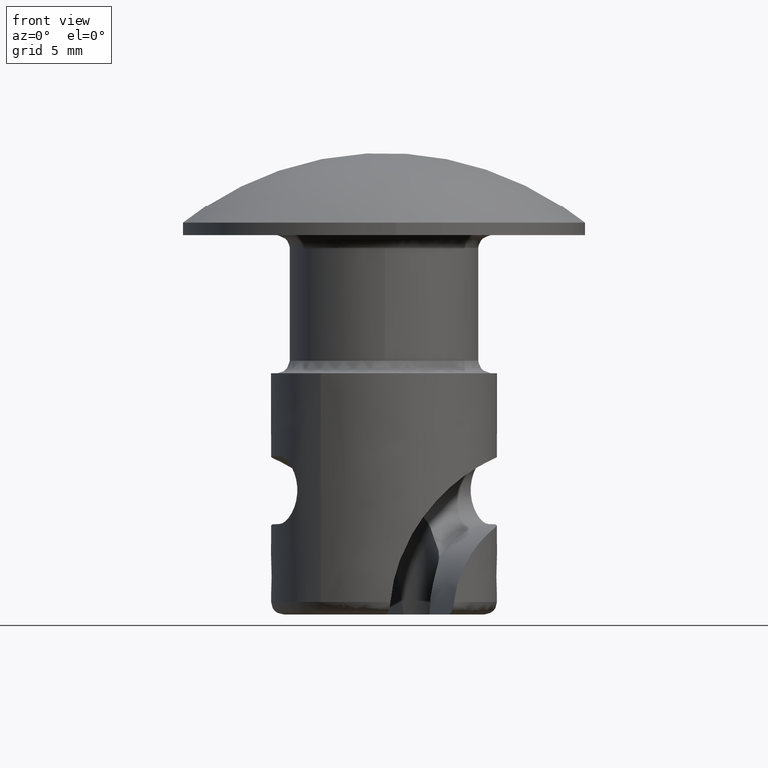
[diagram: clean part render]
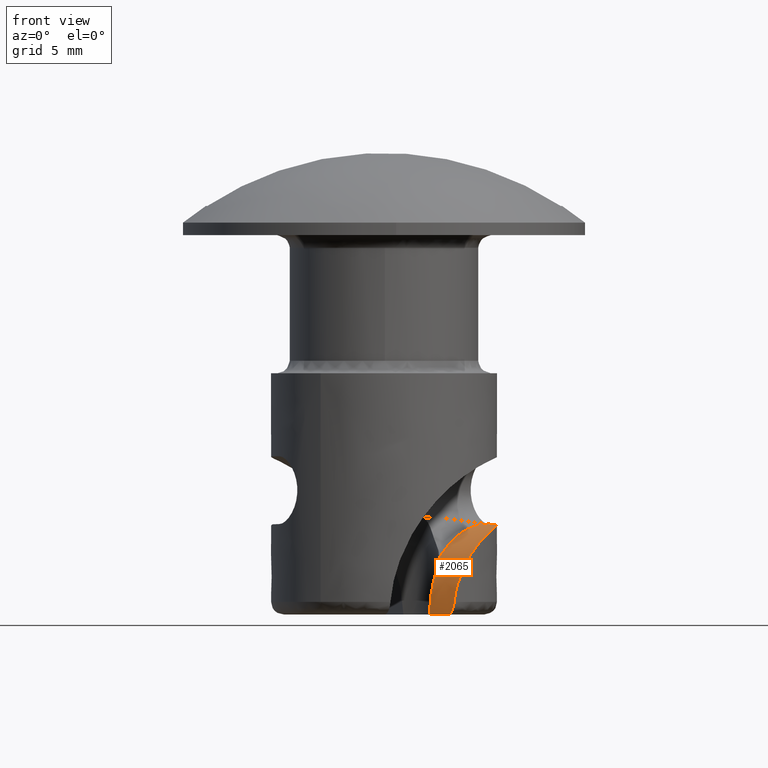
[diagram: same view with one face highlighted and labeled with its STEP entity id]
A machine part, front view. The second image highlights one B-rep face of the part: STEP entity #2065.
In plain terms, the highlighted face is a freeform B-spline surface patch.
Its self-contained STEP definition (entity closure, byte-faithful):
#1195=CARTESIAN_POINT('',(4.157457896922510,1.722075444144590,-11.500000000003380));
#1196=VERTEX_POINT('',#1195);
#1197=CARTESIAN_POINT('',(2.197773768741005,-0.098946760603666,-12.831281592313941));
#1198=VERTEX_POINT('',#1197);
#1199=CARTESIAN_POINT('',(4.157457896922510,1.722075444144590,-11.500000000003380));
#1200=CARTESIAN_POINT('',(4.125452912502550,1.725110562680482,-11.502544796561009));
#1201=CARTESIAN_POINT('',(4.060069893182022,1.731311009838559,-11.507743564369081));
#1202=CARTESIAN_POINT('',(3.959303208621335,1.718714171857049,-11.519622426035649));
#1203=CARTESIAN_POINT('',(3.855849823883416,1.690707122559201,-11.535481755646050));
#1204=CARTESIAN_POINT('',(3.749653738848938,1.645796076980051,-11.556413685271380));
#1205=CARTESIAN_POINT('',(3.640972721425762,1.584720481639556,-11.583234881270741));
#1206=CARTESIAN_POINT('',(3.530041760258121,1.507507301918255,-11.616935497790079));
#1207=CARTESIAN_POINT('',(3.417232390550025,1.414384622367061,-11.658531041559611));
#1208=CARTESIAN_POINT('',(3.303003998406402,1.305560192297589,-11.709101086553909));
#1209=CARTESIAN_POINT('',(3.188035612149698,1.181222990725968,-11.769727560544791));
#1210=CARTESIAN_POINT('',(3.072754431255818,1.041936610764211,-11.841640635108689));
#1211=CARTESIAN_POINT('',(2.920935907106505,0.834458565334028,-11.953960614145940));
#1212=CARTESIAN_POINT('',(2.756251197954633,0.593738081010123,-12.104075932946859));
#1213=CARTESIAN_POINT('',(2.595497183612809,0.359601233917740,-12.283255809704110));
#1214=CARTESIAN_POINT('',(2.468871599093746,0.177441331891214,-12.446003627809439));
#1215=CARTESIAN_POINT('',(2.337960813906498,0.028912850226862,-12.619713458560961));
#1216=CARTESIAN_POINT('',(2.246831830708101,-0.054202610587828,-12.757243902855860));
#1217=CARTESIAN_POINT('',(2.197773723639233,-0.098946741737061,-12.831281635140870));
#1218=B_SPLINE_CURVE_WITH_KNOTS('',3,(#1199,#1200,#1201,#1202,#1203,#1204,#1205,#1206,#1207,#1208,#1209,#1210,#1211,#1212,#1213,#1214,#1215,#1216,#1217),.UNSPECIFIED.,.F.,.U.,(4,1,1,1,1,1,1,1,1,1,1,1,1,1,1,1,4),(0.0,0.030664300407832,0.062644134453290,0.096766221245464,0.133713736690631,0.174026444705904,0.218120680429869,0.266314856127861,0.318852872931530,0.375922946849654,0.437671846497451,0.504215370096612,0.643272935090420,0.749860333036976,0.824062975144340,0.905286582821228,1.0),.UNSPECIFIED.);
#1219=EDGE_CURVE('',#1196,#1198,#1218,.T.);
#1681=CARTESIAN_POINT('',(1.034962855819279,0.639374186945773,-15.228944732872190));
#1682=CARTESIAN_POINT('',(1.084215468838564,0.520384449175651,-15.228916683534180));
#1683=CARTESIAN_POINT('',(1.182714269959426,0.282402312347358,-15.228854622624020));
#1684=CARTESIAN_POINT('',(1.305837907716758,-0.015075302207398,-15.228777357647910));
#1685=CARTESIAN_POINT('',(1.392034695119948,-0.223305390445800,-15.228732941957301));
#1686=CARTESIAN_POINT('',(1.441293601408013,-0.342292521458644,-15.228710950338000));
#1687=CARTESIAN_POINT('',(1.490555064575087,-0.461278593377527,-15.228691363700429));
#1688=CARTESIAN_POINT('',(1.552136349801280,-0.610009337429758,-15.228671082433589));
#1689=CARTESIAN_POINT('',(1.650676554557069,-0.847974324310950,-15.228648173115500));
#1690=CARTESIAN_POINT('',(1.773858039118651,-1.145427977934871,-15.228625815710791));
#1691=CARTESIAN_POINT('',(1.970986753472779,-1.621337943176361,-15.228626359355831));
#1692=CARTESIAN_POINT('',(2.315961909339441,-2.454180421389872,-15.228625887059390));
#1693=CARTESIAN_POINT('',(2.611658342200288,-3.168043976943784,-15.228631659531329));
#1694=CARTESIAN_POINT('',(2.808782994760819,-3.643955624635268,-15.228624780416281));
#1695=CARTESIAN_POINT('',(1.017533071731513,0.632154533994760,-14.746032036799059));
#1696=CARTESIAN_POINT('',(1.066786760657519,0.513165241879792,-14.746004976588130));
#1697=CARTESIAN_POINT('',(1.165285329765830,0.275183008948754,-14.745942648445860));
#1698=CARTESIAN_POINT('',(1.288404446581350,-0.022296478241414,-14.745861075336430));
#1699=CARTESIAN_POINT('',(1.374594005374844,-0.230529560667986,-14.745809787148310));
#1700=CARTESIAN_POINT('',(1.423846434690706,-0.349519374530557,-14.745781649071040));
#1701=CARTESIAN_POINT('',(1.473095294133328,-0.468510667083039,-14.745750655217829));
#1702=CARTESIAN_POINT('',(1.534675690080683,-0.617241779486625,-14.745729510468539));
#1703=CARTESIAN_POINT('',(1.633226392581456,-0.855202418059475,-14.745716328022359));
#1704=CARTESIAN_POINT('',(1.756365991729082,-1.152673421189907,-14.745653523803950));
#1705=CARTESIAN_POINT('',(1.953540274708747,-1.628564511288696,-14.745698469283591));
#1706=CARTESIAN_POINT('',(2.298478089768139,-2.461422456570995,-14.745661165267769));
#1707=CARTESIAN_POINT('',(2.594168285910470,-3.175288595458295,-14.745665852729640));
#1708=CARTESIAN_POINT('',(2.791313911753889,-3.651191555731570,-14.745669454813120));
#1709=CARTESIAN_POINT('',(1.090178833974785,0.662245393934123,-14.264295783530541));
#1710=CARTESIAN_POINT('',(1.139439572252817,0.543259021756369,-14.264275238050841));
#1711=CARTESIAN_POINT('',(1.237938566497721,0.305276964922673,-14.264213296728460));
#1712=CARTESIAN_POINT('',(1.361023589535300,0.007783355627303,-14.264100385788460));
#1713=CARTESIAN_POINT('',(1.447200056864402,-0.200455149461366,-14.264037566134331));
#1714=CARTESIAN_POINT('',(1.496453546294813,-0.319444524210113,-14.264010922091460));
#1715=CARTESIAN_POINT('',(1.545725951579542,-0.438426063755467,-14.264000803796311));
#1716=CARTESIAN_POINT('',(1.607280135092165,-0.587168033705010,-14.263955505781720));
#1717=CARTESIAN_POINT('',(1.705767702396476,-0.825154823732472,-14.263883637401401));
#1718=CARTESIAN_POINT('',(1.828930635141916,-1.122616161770235,-14.263847537947401));
#1719=CARTESIAN_POINT('',(2.026021380692177,-1.598541854205223,-14.263808067631381));
#1720=CARTESIAN_POINT('',(2.371056766666423,-2.431359384291331,-14.263867015413490));
#1721=CARTESIAN_POINT('',(2.666726233395976,-3.145234109582539,-14.263839169144649));
#1722=CARTESIAN_POINT('',(2.863826696813442,-3.621155776745133,-14.263828668697110));
#1723=CARTESIAN_POINT('',(1.327624994764378,0.760598813966150,-13.586414353598620));
#1724=CARTESIAN_POINT('',(1.376916731847912,0.641625281914039,-13.586422467773430));
#1725=CARTESIAN_POINT('',(1.475501790942413,0.403678874308253,-13.586439701131740));
#1726=CARTESIAN_POINT('',(1.598633691787954,0.106204682436696,-13.586368761969860));
#1727=CARTESIAN_POINT('',(1.684755312291634,-0.102056540950893,-13.586253929580071));
#1728=CARTESIAN_POINT('',(1.733954421748801,-0.221068440622057,-13.586176021346271));
#1729=CARTESIAN_POINT('',(1.783116289346166,-0.340095766376623,-13.586066062064820));
#1730=CARTESIAN_POINT('',(1.844667923283617,-0.488838792394780,-13.586018986933439));
#1731=CARTESIAN_POINT('',(1.943159536309370,-0.726823906629552,-13.585951455740579));
#1732=CARTESIAN_POINT('',(2.066234330363976,-1.024321752908394,-13.585829217605539));
#1733=CARTESIAN_POINT('',(2.263451689576771,-1.500195000247228,-13.585912415845030));
#1734=CARTESIAN_POINT('',(2.608427008525650,-2.333037410909872,-13.585913008052451));
#1735=CARTESIAN_POINT('',(2.904100103743861,-3.046910633231866,-13.585895782185339));
#1736=CARTESIAN_POINT('',(3.101221658531417,-3.522823564062931,-13.585885375864860));
#1737=CARTESIAN_POINT('',(1.452297086928057,0.812239685337035,-13.316157497510700));
#1738=CARTESIAN_POINT('',(1.501602530506125,0.693271830700846,-13.316178157944959));
#1739=CARTESIAN_POINT('',(1.600253770803644,0.455352836246897,-13.316257606637100));
#1740=CARTESIAN_POINT('',(1.723478241036672,0.157916987871058,-13.316267479678640));
#1741=CARTESIAN_POINT('',(1.809482378565552,-0.050392898557991,-13.316045613343460));
#1742=CARTESIAN_POINT('',(1.858666442906383,-0.169411030120382,-13.315958663183221));
#1743=CARTESIAN_POINT('',(1.908018848725651,-0.288359432359367,-13.316018719335471));
#1744=CARTESIAN_POINT('',(1.969330952772527,-0.437201674906691,-13.315751222139561));
#1745=CARTESIAN_POINT('',(2.067726290556551,-0.675226667652269,-13.315596792494860));
#1746=CARTESIAN_POINT('',(2.190913165686793,-0.972678088429542,-13.315579000123920));
#1747=CARTESIAN_POINT('',(2.388137721756232,-1.448548354732753,-13.315667873682450));
#1748=CARTESIAN_POINT('',(2.733109268065450,-2.281392328073908,-13.315666519001031));
#1749=CARTESIAN_POINT('',(3.028776625883912,-2.995267926904687,-13.315641458469029));
#1750=CARTESIAN_POINT('',(3.225886186941826,-3.471185825701227,-13.315626233346810));
#1751=CARTESIAN_POINT('',(1.637101442129758,0.888788155569018,-13.015870026501950));
#1752=CARTESIAN_POINT('',(1.686416660982527,0.769824349984182,-13.015900003792909));
#1753=CARTESIAN_POINT('',(1.785004949473800,0.531879280038336,-13.015920319477839));
#1754=CARTESIAN_POINT('',(1.908575422233549,0.234586750601535,-13.016255196093940));
#1755=CARTESIAN_POINT('',(1.994630055288626,0.026297780104255,-13.016059244110220));
#1756=CARTESIAN_POINT('',(2.043473739084904,-0.092861341695915,-13.015645953206180));
#1757=CARTESIAN_POINT('',(2.092100653132428,-0.212110252465837,-13.015057516382260));
#1758=CARTESIAN_POINT('',(2.154119809570743,-0.360659624323623,-13.015452625856909));
#1759=CARTESIAN_POINT('',(2.252674658075601,-0.598618545565351,-13.015442698588430));
#1760=CARTESIAN_POINT('',(2.375850108455331,-0.896074698629230,-13.015413102692410));
#1761=CARTESIAN_POINT('',(2.573065343124651,-1.371948825982786,-13.015494152399830));
#1762=CARTESIAN_POINT('',(2.918009961929646,-2.204803953061379,-13.015467787672920));
#1763=CARTESIAN_POINT('',(3.213673927652127,-2.918680956944319,-13.015441073890530));
#1764=CARTESIAN_POINT('',(3.410785463493042,-3.394598037758958,-13.015425902428911));
#1765=CARTESIAN_POINT('',(1.719833207571193,0.923056774818933,-12.894997607679180));
#1766=CARTESIAN_POINT('',(1.769133212558097,0.804086667444525,-12.895014079050810));
#1767=CARTESIAN_POINT('',(1.867778013717937,0.566165005812422,-12.895083399531369));
#1768=CARTESIAN_POINT('',(1.991161243475300,0.268794917784652,-12.895255838684911));
#1769=CARTESIAN_POINT('',(2.077987839619897,0.060825704868377,-12.895752825296359));
#1770=CARTESIAN_POINT('',(2.125307907150196,-0.058964519452370,-12.893948663745491));
#1771=CARTESIAN_POINT('',(2.174782851045042,-0.177862164758599,-12.894158420947541));
#1772=CARTESIAN_POINT('',(2.237342539144839,-0.326187641071527,-12.895033347002659));
#1773=CARTESIAN_POINT('',(2.335277346718671,-0.564403391675853,-12.894451759857240));
#1774=CARTESIAN_POINT('',(2.458729441185247,-0.861744955007126,-12.894676655794090));
#1775=CARTESIAN_POINT('',(2.655835206171689,-1.337664426187952,-12.894656781651420));
#1776=CARTESIAN_POINT('',(3.000802656735272,-2.170510096042496,-12.894651881891710));
#1777=CARTESIAN_POINT('',(3.296455222772909,-2.884391821829499,-12.894614410785550));
#1778=CARTESIAN_POINT('',(3.493567646661021,-3.360308534802946,-12.894600563803991));
#1779=CARTESIAN_POINT('',(1.780681933855991,0.948261142473483,-12.812744704388740));
#1780=CARTESIAN_POINT('',(1.829972199258204,0.829287000831010,-12.812752143811380));
#1781=CARTESIAN_POINT('',(1.928639377764698,0.591374608199371,-12.812842270923040));
#1782=CARTESIAN_POINT('',(2.051904276974990,0.293955506054211,-12.812905611467180));
#1783=CARTESIAN_POINT('',(2.139028192398680,0.086109446815565,-12.813684178060191));
#1784=CARTESIAN_POINT('',(2.186755800637584,-0.033511968616629,-12.812245168865770));
#1785=CARTESIAN_POINT('',(2.237031167172167,-0.152078068010183,-12.813195253699300));
#1786=CARTESIAN_POINT('',(2.297672794317620,-0.301198031183054,-12.812311450537530));
#1787=CARTESIAN_POINT('',(2.396368285320455,-0.539098696394735,-12.812419604941320));
#1788=CARTESIAN_POINT('',(2.519581451383056,-0.836539227111270,-12.812427568259089));
#1789=CARTESIAN_POINT('',(2.716745314549925,-1.312434633237839,-12.812460121242410));
#1790=CARTESIAN_POINT('',(3.061682984929994,-2.145292638448270,-12.812428430550010));
#1791=CARTESIAN_POINT('',(3.357346023692764,-2.859170026290493,-12.812400578222590));
#1792=CARTESIAN_POINT('',(3.554456295311438,-3.335087630763131,-12.812384729397840));
#1793=CARTESIAN_POINT('',(1.816281654463762,0.963007029550855,-12.766435224987140));
#1794=CARTESIAN_POINT('',(1.865576535488326,0.844034799761756,-12.766446553391191));
#1795=CARTESIAN_POINT('',(1.964193340195355,0.606101541619213,-12.766492305883780));
#1796=CARTESIAN_POINT('',(2.087566770586694,0.308727394561137,-12.766649851608159));
#1797=CARTESIAN_POINT('',(2.174349403702921,0.100739971562286,-12.767132650415460));
#1798=CARTESIAN_POINT('',(2.223554832515937,-0.018269310545982,-12.767022865120740));
#1799=CARTESIAN_POINT('',(2.272229522484998,-0.137498431881272,-12.766549629368200));
#1800=CARTESIAN_POINT('',(2.333299666619269,-0.286440897505847,-12.766019801402891));
#1801=CARTESIAN_POINT('',(2.432005589357745,-0.524337241751151,-12.766147150071030));
#1802=CARTESIAN_POINT('',(2.555215943034900,-0.821778937395880,-12.766149390858979));
#1803=CARTESIAN_POINT('',(2.752370682193384,-1.297678122810461,-12.766174420452760));
#1804=CARTESIAN_POINT('',(3.097305951617385,-2.130537122529457,-12.766140416512769));
#1805=CARTESIAN_POINT('',(3.392969260061982,-2.844414398665811,-12.766112989866309));
#1806=CARTESIAN_POINT('',(3.590079439264942,-3.320332041418291,-12.766097034714090));
#1807=CARTESIAN_POINT('',(1.843393410664117,0.974237086657326,-12.732053790632429));
#1808=CARTESIAN_POINT('',(1.892685713577190,0.855263788979484,-12.732062733605510));
#1809=CARTESIAN_POINT('',(1.991300251227842,0.617329591791443,-12.732106324709910));
#1810=CARTESIAN_POINT('',(2.114648636823709,0.319945070839426,-12.732241062167580));
#1811=CARTESIAN_POINT('',(2.201419175680028,0.111952638234099,-12.732714670804469));
#1812=CARTESIAN_POINT('',(2.250722477193922,-0.007016103674121,-12.732714723594320));
#1813=CARTESIAN_POINT('',(2.298844272736876,-0.126474241379030,-12.731724911954270));
#1814=CARTESIAN_POINT('',(2.360511289534307,-0.275169474251767,-12.731727015018020));
#1815=CARTESIAN_POINT('',(2.459123791496010,-0.513104514649779,-12.731772770609689));
#1816=CARTESIAN_POINT('',(2.582360685335001,-0.810535216999537,-12.731798002127750));
#1817=CARTESIAN_POINT('',(2.779499692625331,-1.286440918767263,-12.731808916831371));
#1818=CARTESIAN_POINT('',(3.124436417711859,-2.119299315531099,-12.731776300801830));
#1819=CARTESIAN_POINT('',(3.420098422662246,-2.833177131592434,-12.731747755221861));
#1820=CARTESIAN_POINT('',(3.617209018243114,-3.309094601875536,-12.731732170205220));
#1821=CARTESIAN_POINT('',(1.870914633020935,0.985636750198964,-12.698027658538450));
#1822=CARTESIAN_POINT('',(1.920204248742660,0.866662339450021,-12.698034133912920));
#1823=CARTESIAN_POINT('',(2.018816765580232,0.628727305213796,-12.698075655751261));
#1824=CARTESIAN_POINT('',(2.142137492171390,0.331331327526919,-12.698185505422099));
#1825=CARTESIAN_POINT('',(2.228882088365485,0.123328149119066,-12.698635865879350));
#1826=CARTESIAN_POINT('',(2.278087968661913,0.004319054021350,-12.698569494276381));
#1827=CARTESIAN_POINT('',(2.326025392495818,-0.115215452945888,-12.697386045530431));
#1828=CARTESIAN_POINT('',(2.388107305211703,-0.263738830302402,-12.697769407066090));
#1829=CARTESIAN_POINT('',(2.486661184036656,-0.501698153198700,-12.697761668100110));
#1830=CARTESIAN_POINT('',(2.609911744166999,-0.799123194785239,-12.697799311501820));
#1831=CARTESIAN_POINT('',(2.807039038446941,-1.275033748240719,-12.697799410163761));
#1832=CARTESIAN_POINT('',(3.151975748101465,-2.107892151396700,-12.697766969572410));
#1833=CARTESIAN_POINT('',(3.447637748214289,-2.821769969461820,-12.697738498373010));
#1834=CARTESIAN_POINT('',(3.644748167824336,-3.297687512634422,-12.697722708093410));
#1835=CARTESIAN_POINT('',(1.908152175344432,1.001061045243046,-12.653139346264309));
#1836=CARTESIAN_POINT('',(1.957437500865611,0.882084857434854,-12.653141784544241));
#1837=CARTESIAN_POINT('',(2.056051543888367,0.644150455365230,-12.653184975552101));
#1838=CARTESIAN_POINT('',(2.179322213639074,0.346733743456170,-12.653247865225561));
#1839=CARTESIAN_POINT('',(2.266046318565858,0.138722077287495,-12.653683861756850));
#1840=CARTESIAN_POINT('',(2.314923250835377,0.019576727455855,-12.653331300911960));
#1841=CARTESIAN_POINT('',(2.363126218541808,-0.099847787638087,-12.652357929138899));
#1842=CARTESIAN_POINT('',(2.425387210605003,-0.248296987900282,-12.652922573714269));
#1843=CARTESIAN_POINT('',(2.523940677952907,-0.486256481235954,-12.652911202378290));
#1844=CARTESIAN_POINT('',(2.647182225727621,-0.783685255862420,-12.652941582090991));
#1845=CARTESIAN_POINT('',(2.844302328466250,-1.259598788151842,-12.652934590366410));
#1846=CARTESIAN_POINT('',(3.189237285666660,-2.092457917198086,-12.652901083670990));
#1847=CARTESIAN_POINT('',(3.484898103303642,-2.806336225060731,-12.652871271856460));
#1848=CARTESIAN_POINT('',(3.682009622763302,-3.282253312660711,-12.652856634025040));
#1849=CARTESIAN_POINT('',(1.936687014643052,1.012880562668600,-12.620019932873991));
#1850=CARTESIAN_POINT('',(1.985968147364345,0.893902638145833,-12.620018263991851));
#1851=CARTESIAN_POINT('',(2.084589356171851,0.655971204241435,-12.620069306193480));
#1852=CARTESIAN_POINT('',(2.207804852857513,0.358531638900578,-12.620077532456881));
#1853=CARTESIAN_POINT('',(2.294557599705635,0.150531836604162,-12.620550628737320));
#1854=CARTESIAN_POINT('',(2.342809198656578,0.031127465231230,-12.619589854981260));
#1855=CARTESIAN_POINT('',(2.391831100106653,-0.087957836399758,-12.619388867688610));
#1856=CARTESIAN_POINT('',(2.453904428558559,-0.236484769474833,-12.619786505465649));
#1857=CARTESIAN_POINT('',(2.552523182762877,-0.474417220109161,-12.619835786078349));
#1858=CARTESIAN_POINT('',(2.675735548976470,-0.771858082134003,-12.619839118166579));
#1859=CARTESIAN_POINT('',(2.872857756778393,-1.247770742477660,-12.619834028183559));
#1860=CARTESIAN_POINT('',(3.217788270358108,-2.080631712131857,-12.619796620424420));
#1861=CARTESIAN_POINT('',(3.513451694401357,-2.794508940385685,-12.619769495671401));
#1862=CARTESIAN_POINT('',(3.710562172592628,-3.270426459293149,-12.619753688969761));
#1863=CARTESIAN_POINT('',(2.033134062567227,1.052830237928842,-12.510867289166439));
#1864=CARTESIAN_POINT('',(2.082400898639305,0.933846391540079,-12.510850413586780));
#1865=CARTESIAN_POINT('',(2.181052440813611,0.695927522127589,-12.510940813836729));
#1866=CARTESIAN_POINT('',(2.304075699719672,0.398408329291303,-12.510738264188941));
#1867=CARTESIAN_POINT('',(2.390923999617924,0.190448106364135,-12.511389789445980));
#1868=CARTESIAN_POINT('',(2.438755057068680,0.070869540998464,-12.509883155330700));
#1869=CARTESIAN_POINT('',(2.488626194912139,-0.047863995401083,-12.510532405780159));
#1870=CARTESIAN_POINT('',(2.550427244860536,-0.196503709924939,-12.510702712413639));
#1871=CARTESIAN_POINT('',(2.649087895521998,-0.434418806478520,-12.510791682512400));
#1872=CARTESIAN_POINT('',(2.772254551790845,-0.731878602182392,-12.510752631383060));
#1873=CARTESIAN_POINT('',(2.969367771839698,-1.207794985375262,-12.510738767432899));
#1874=CARTESIAN_POINT('',(3.314294157830437,-2.040657664732795,-12.510699417799520));
#1875=CARTESIAN_POINT('',(3.609952174695240,-2.754537132713256,-12.510665625705860));
#1876=CARTESIAN_POINT('',(3.807067502502184,-3.230452642844146,-12.510655276711070));
#1877=CARTESIAN_POINT('',(2.195181113022104,1.119952323901260,-12.345091795065009));
#1878=CARTESIAN_POINT('',(2.244465506197685,1.000975749902876,-12.345093565352171));
#1879=CARTESIAN_POINT('',(2.342931367761370,0.762979969063276,-12.344996401625210));
#1880=CARTESIAN_POINT('',(2.466351657214307,0.465625231664013,-12.345203615880781));
#1881=CARTESIAN_POINT('',(2.552056967413301,0.257191566902245,-12.344681241595200));
#1882=CARTESIAN_POINT('',(2.601685587002087,0.138357576152592,-12.345049109308420));
#1883=CARTESIAN_POINT('',(2.650851683788346,0.019332002185422,-12.344898233573030));
#1884=CARTESIAN_POINT('',(2.712672149650777,-0.129299670003523,-12.345112801065939));
#1885=CARTESIAN_POINT('',(2.811248092275228,-0.367249853774840,-12.345118727684071));
#1886=CARTESIAN_POINT('',(2.934408187835314,-0.664712367013257,-12.345074528837531));
#1887=CARTESIAN_POINT('',(3.131500249095833,-1.140637514463210,-12.345040327637850));
#1888=CARTESIAN_POINT('',(3.476421673010915,-1.973502249179773,-12.344998990364109));
#1889=CARTESIAN_POINT('',(3.772087998055227,-2.687378275799614,-12.344973578385810));
#1890=CARTESIAN_POINT('',(3.969198339386865,-3.163295851396196,-12.344957569097410));
#1891=CARTESIAN_POINT('',(2.547472494908194,1.265876192036609,-12.051118205416300));
#1892=CARTESIAN_POINT('',(2.596746221893619,1.146895199957609,-12.051108733162300));
#1893=CARTESIAN_POINT('',(2.695369236736495,0.908964514137554,-12.051161246580040));
#1894=CARTESIAN_POINT('',(2.818392458576916,0.611445305948177,-12.050987790110300));
#1895=CARTESIAN_POINT('',(2.904882120525638,0.403336530318485,-12.051224236867901));
#1896=CARTESIAN_POINT('',(2.954060793351933,0.284316165517654,-12.051108777226650));
#1897=CARTESIAN_POINT('',(3.003442431680464,0.165379871780456,-12.051216692716009));
#1898=CARTESIAN_POINT('',(3.065038351961404,0.016655189766381,-12.051204516639711));
#1899=CARTESIAN_POINT('',(3.163625761150207,-0.221290244398473,-12.051224401337890));
#1900=CARTESIAN_POINT('',(3.286799263709380,-0.518747204276043,-12.051190782840569));
#1901=CARTESIAN_POINT('',(3.483880668606679,-0.994676765736162,-12.051140587666829));
#1902=CARTESIAN_POINT('',(3.828815130450536,-1.827536099965807,-12.051126526465350));
#1903=CARTESIAN_POINT('',(4.124478286828729,-2.541413439090128,-12.051091634279389));
#1904=CARTESIAN_POINT('',(4.321588146134558,-3.017331214348336,-12.051076015674941));
#1905=CARTESIAN_POINT('',(2.840298060956449,1.387168512779503,-11.875242648281590));
#1906=CARTESIAN_POINT('',(2.889569740387757,1.268186672575818,-11.875232317564629));
#1907=CARTESIAN_POINT('',(2.988154768255938,1.030240252035667,-11.875244745481250));
#1908=CARTESIAN_POINT('',(3.111373825965266,0.732802161719108,-11.875248851991140));
#1909=CARTESIAN_POINT('',(3.197607152926382,0.524587208661147,-11.875242513997611));
#1910=CARTESIAN_POINT('',(3.246941367762592,0.405631271470276,-11.875296101301171));
#1911=CARTESIAN_POINT('',(3.296231067888428,0.286656895682660,-11.875298846225620));
#1912=CARTESIAN_POINT('',(3.357859414641691,0.137945645153187,-11.875322176713601));
#1913=CARTESIAN_POINT('',(3.456424694458290,-0.100008955297751,-11.875322429654579));
#1914=CARTESIAN_POINT('',(3.579610706266446,-0.397460733674742,-11.875292295901490));
#1915=CARTESIAN_POINT('',(3.776698614116085,-0.873387601523808,-11.875238164800249));
#1916=CARTESIAN_POINT('',(4.121648522645392,-1.706240537526855,-11.875264673414110));
#1917=CARTESIAN_POINT('',(4.417305337611231,-2.420120503350171,-11.875213472309500));
#1918=CARTESIAN_POINT('',(4.614417148006291,-2.896037470440762,-11.875200771657591));
#1919=CARTESIAN_POINT('',(3.451756354688281,1.640442830610075,-11.590966836703270));
#1920=CARTESIAN_POINT('',(3.501054136090317,1.521471802196660,-11.590980661202590));
#1921=CARTESIAN_POINT('',(3.599616040982109,1.283515803806099,-11.590975865517670));
#1922=CARTESIAN_POINT('',(3.722828375775892,0.986074928766744,-11.591013563909691));
#1923=CARTESIAN_POINT('',(3.809102919767450,0.777877048361776,-11.591010043448151));
#1924=CARTESIAN_POINT('',(3.858372867112815,0.658894490704603,-11.590988647426650));
#1925=CARTESIAN_POINT('',(3.907661221882994,0.539919557652429,-11.591005088176409));
#1926=CARTESIAN_POINT('',(3.969260372155317,0.391196213544591,-11.591012028427169));
#1927=CARTESIAN_POINT('',(4.067821271036809,0.153239798450917,-11.591000638241921));
#1928=CARTESIAN_POINT('',(4.191021657635480,-0.144206025692892,-11.591007366447220));
#1929=CARTESIAN_POINT('',(4.388101978721511,-0.620136036082339,-11.590864559655600));
#1930=CARTESIAN_POINT('',(4.733093724946156,-1.452971642344573,-11.591009150214781));
#1931=CARTESIAN_POINT('',(5.028737005399255,-2.166857214346623,-11.590916907627561));
#1932=CARTESIAN_POINT('',(5.225849490882467,-2.642773901806544,-11.590908707781830));
#1933=CARTESIAN_POINT('',(3.888765123944103,1.821457789526951,-11.491725379105260));
#1934=CARTESIAN_POINT('',(3.938042142981010,1.702478161060321,-11.491710614246550));
#1935=CARTESIAN_POINT('',(4.036615451379538,1.464526886156896,-11.491705946432621));
#1936=CARTESIAN_POINT('',(4.159816179019738,1.167081203277116,-11.491588043610481));
#1937=CARTESIAN_POINT('',(4.246054204521667,0.958868196418478,-11.491684988410819));
#1938=CARTESIAN_POINT('',(4.295342932795858,0.839893418076733,-11.491724529651050));
#1939=CARTESIAN_POINT('',(4.344620019692793,0.720913817718647,-11.491707701600051));
#1940=CARTESIAN_POINT('',(4.406219820802397,0.572190743196436,-11.491691573563040));
#1941=CARTESIAN_POINT('',(4.504777807136899,0.334233121686300,-11.491695764691420));
#1942=CARTESIAN_POINT('',(4.627986320761869,0.036790663867002,-11.491730031290651));
#1943=CARTESIAN_POINT('',(4.825066508095105,-0.439139401924666,-11.491566203740820));
#1944=CARTESIAN_POINT('',(5.170015539275946,-1.271992701337342,-11.491602901710200));
#1945=CARTESIAN_POINT('',(5.465714619070261,-1.985855160495514,-11.491634547892501));
#1946=CARTESIAN_POINT('',(5.662817202954484,-2.461775949332021,-11.491605380308039));
#1947=CARTESIAN_POINT('',(4.330841062929678,2.004571638866586,-11.487777819483940));
#1948=CARTESIAN_POINT('',(4.380128308688369,1.885596246446813,-11.487783682903769));
#1949=CARTESIAN_POINT('',(4.478686888002733,1.647638870556975,-11.487740607116670));
#1950=CARTESIAN_POINT('',(4.601882944458846,1.350191252809394,-11.487681951879679));
#1951=CARTESIAN_POINT('',(4.688128134736446,1.141981213698009,-11.487742393679291));
#1952=CARTESIAN_POINT('',(4.737409475834764,1.023003375487833,-11.487754764709550));
#1953=CARTESIAN_POINT('',(4.786689815649359,0.904025122532358,-11.487760987502581));
#1954=CARTESIAN_POINT('',(4.848288995030652,0.755301790481849,-11.487757926962651));
#1955=CARTESIAN_POINT('',(4.946847910568422,0.517344553860308,-11.487755802275011));
#1956=CARTESIAN_POINT('',(5.070045342732556,0.219897505949644,-11.487754372157200));
#1957=CARTESIAN_POINT('',(5.267143922364098,-0.256024941502630,-11.487667211101400));
#1958=CARTESIAN_POINT('',(5.612089208485909,-1.088879792169547,-11.487651343954269));
#1959=CARTESIAN_POINT('',(5.907781356815542,-1.802745122434393,-11.487684564524001));
#1960=CARTESIAN_POINT('',(6.104890823250666,-2.278663060424976,-11.487664059895470));
#1961=B_SPLINE_SURFACE_WITH_KNOTS('',3,3,((#1681,#1695,#1709,#1723,#1737,#1751,#1765,#1779,#1793,#1807,#1821,#1835,#1849,#1863,#1877,#1891,#1905,#1919,#1933,#1947),(#1682,#1696,#1710,#1724,#1738,#1752,#1766,#1780,#1794,#1808,#1822,#1836,#1850,#1864,#1878,#1892,#1906,#1920,#1934,#1948),(#1683,#1697,#1711,#1725,#1739,#1753,#1767,#1781,#1795,#1809,#1823,#1837,#1851,#1865,#1879,#1893,#1907,#1921,#1935,#1949),(#1684,#1698,#1712,#1726,#1740,#1754,#1768,#1782,#1796,#1810,#1824,#1838,#1852,#1866,#1880,#1894,#1908,#1922,#1936,#1950),(#1685,#1699,#1713,#1727,#1741,#1755,#1769,#1783,#1797,#1811,#1825,#1839,#1853,#1867,#1881,#1895,#1909,#1923,#1937,#1951),(#1686,#1700,#1714,#1728,#1742,#1756,#1770,#1784,#1798,#1812,#1826,#1840,#1854,#1868,#1882,#1896,#1910,#1924,#1938,#1952),(#1687,#1701,#1715,#1729,#1743,#1757,#1771,#1785,#1799,#1813,#1827,#1841,#1855,#1869,#1883,#1897,#1911,#1925,#1939,#1953),(#1688,#1702,#1716,#1730,#1744,#1758,#1772,#1786,#1800,#1814,#1828,#1842,#1856,#1870,#1884,#1898,#1912,#1926,#1940,#1954),(#1689,#1703,#1717,#1731,#1745,#1759,#1773,#1787,#1801,#1815,#1829,#1843,#1857,#1871,#1885,#1899,#1913,#1927,#1941,#1955),(#1690,#1704,#1718,#1732,#1746,#1760,#1774,#1788,#1802,#1816,#1830,#1844,#1858,#1872,#1886,#1900,#1914,#1928,#1942,#1956),(#1691,#1705,#1719,#1733,#1747,#1761,#1775,#1789,#1803,#1817,#1831,#1845,#1859,#1873,#1887,#1901,#1915,#1929,#1943,#1957),(#1692,#1706,#1720,#1734,#1748,#1762,#1776,#1790,#1804,#1818,#1832,#1846,#1860,#1874,#1888,#1902,#1916,#1930,#1944,#1958),(#1693,#1707,#1721,#1735,#1749,#1763,#1777,#1791,#1805,#1819,#1833,#1847,#1861,#1875,#1889,#1903,#1917,#1931,#1945,#1959),(#1694,#1708,#1722,#1736,#1750,#1764,#1778,#1792,#1806,#1820,#1834,#1848,#1862,#1876,#1890,#1904,#1918,#1932,#1946,#1960)),.UNSPECIFIED.,.F.,.F.,.U.,(4,1,1,1,1,1,1,1,1,1,1,4),(4,2,1,1,1,1,1,1,1,1,2,1,1,2,4),(0.0,0.386341026923646,0.772682053847292,0.965852567309115,1.062437824040027,1.159023080770938,1.352193594232761,1.545364107694584,1.931705134618230,2.318046161541876,3.090728215389168,4.636092323083752),(0.0,1.0,1.500000000000000,1.625000000000000,1.750000000000000,1.812500000000000,1.843750000000000,1.875000000000000,1.906250000000000,1.937500000000000,2.0,2.250000000000000,2.500000000000000,3.0,3.990276558246836),.UNSPECIFIED.);
#1962=CARTESIAN_POINT('',(2.793620478200045,-3.527844189272160,-14.600000000000000));
#1963=VERTEX_POINT('',#1962);
#1964=CARTESIAN_POINT('',(4.157457896922510,1.722075444144590,-11.500000000003380));
#1965=CARTESIAN_POINT('',(4.275098181688673,1.438066672888123,-11.499999999999959));
#1966=CARTESIAN_POINT('',(4.361924483493913,1.146989956070265,-11.502196707037660));
#1967=CARTESIAN_POINT('',(4.447766466480806,0.700261557852445,-11.512184261434690));
#1968=CARTESIAN_POINT('',(4.468922456169007,0.549654526392868,-11.516702741768791));
#1969=CARTESIAN_POINT('',(4.489176712308623,0.321153312413989,-11.526430033919910));
#1970=CARTESIAN_POINT('',(4.494010997276226,0.244350596204309,-11.530183565594580));
#1971=CARTESIAN_POINT('',(4.499717019148100,0.091590420317664,-11.538849087279150));
#1972=CARTESIAN_POINT('',(4.500612110732269,0.015486951103411,-11.543764635117460));
#1973=CARTESIAN_POINT('',(4.495529417417937,-0.363596930584298,-11.571858797357590));
#1974=CARTESIAN_POINT('',(4.461077330837331,-0.662351090224224,-11.605156439175300));
#1975=CARTESIAN_POINT('',(4.381497631020215,-1.028639151629699,-11.673777433173990));
#1976=CARTESIAN_POINT('',(4.363744155630866,-1.101534149716586,-11.688881071736450));
#1977=CARTESIAN_POINT('',(4.324555586477660,-1.246539015939420,-11.722325831879800));
#1978=CARTESIAN_POINT('',(4.303249794364775,-1.318139968697513,-11.740559089148570));
#1979=CARTESIAN_POINT('',(4.234908379046757,-1.528842078239489,-11.799946542410360));
#1980=CARTESIAN_POINT('',(4.183296598549157,-1.664417702988299,-11.845903030273041));
#1981=CARTESIAN_POINT('',(4.069756319001876,-1.925445461548605,-11.953319770208640));
#1982=CARTESIAN_POINT('',(4.007751617169990,-2.051022759708346,-12.014843140233509));
#1983=CARTESIAN_POINT('',(3.875566353943567,-2.291015674750158,-12.156459081937980));
#1984=CARTESIAN_POINT('',(3.807013002156431,-2.402544771638008,-12.234848049261579));
#1985=CARTESIAN_POINT('',(3.668028828132413,-2.609814915717757,-12.407840084303411));
#1986=CARTESIAN_POINT('',(3.597588864847397,-2.705556032544163,-12.502436064278299));
#1987=CARTESIAN_POINT('',(3.492725856697733,-2.837963329816331,-12.657469661747390));
#1988=CARTESIAN_POINT('',(3.457796669562606,-2.880354848847405,-12.711517548968949));
#1989=CARTESIAN_POINT('',(3.389087195505961,-2.960893419995828,-12.823389591074610));
#1990=CARTESIAN_POINT('',(3.355502687369175,-2.998824596684464,-12.880878451875910));
#1991=CARTESIAN_POINT('',(3.257488386847238,-3.106148482613612,-13.057936913123170));
#1992=CARTESIAN_POINT('',(3.195797664420380,-3.169099824794244,-13.182084059214160));
#1993=CARTESIAN_POINT('',(3.110373414126820,-3.252254037978780,-13.377441065783669));
#1994=CARTESIAN_POINT('',(3.083083487362928,-3.278086067399838,-13.444086200004779));
#1995=CARTESIAN_POINT('',(3.031152960945571,-3.326163523142216,-13.580470962078190));
#1996=CARTESIAN_POINT('',(3.006517806341098,-3.348399969459677,-13.650249162426389));
#1997=CARTESIAN_POINT('',(2.937969710786233,-3.409114354168537,-13.861119669289460));
#1998=CARTESIAN_POINT('',(2.898998653970978,-3.442021636667787,-14.004750055243340));
#1999=CARTESIAN_POINT('',(2.835326905395566,-3.494656990686607,-14.297914189005610));
#2000=CARTESIAN_POINT('',(2.810620408912234,-3.514382326441035,-14.447447129772669));
#2001=CARTESIAN_POINT('',(2.793620478200045,-3.527844189272160,-14.600000000000000));
#2002=B_SPLINE_CURVE_WITH_KNOTS('',3,(#1964,#1965,#1966,#1967,#1968,#1969,#1970,#1971,#1972,#1973,#1974,#1975,#1976,#1977,#1978,#1979,#1980,#1981,#1982,#1983,#1984,#1985,#1986,#1987,#1988,#1989,#1990,#1991,#1992,#1993,#1994,#1995,#1996,#1997,#1998,#1999,#2000,#2001),.UNSPECIFIED.,.F.,.U.,(4,2,2,2,2,2,2,2,2,2,2,2,2,2,2,2,2,2,4),(0.0,0.125000000000000,0.187500000000001,0.218750000000001,0.250000000000001,0.375000000000001,0.406250000000002,0.437500000000002,0.500000000000002,0.562500000000003,0.625000000000003,0.687500000000003,0.718750000000003,0.750000000000004,0.812500000000003,0.843750000000003,0.875000000000003,0.937500000000001,1.0),.UNSPECIFIED.);
#2003=EDGE_CURVE('',#1196,#1963,#2002,.T.);
#2004=ORIENTED_EDGE('',*,*,#2003,.F.);
#2005=ORIENTED_EDGE('',*,*,#1219,.T.);
#2006=CARTESIAN_POINT('',(1.812775825419165,-1.246532713881200,-15.100000000000000));
#2007=VERTEX_POINT('',#2006);
#2008=CARTESIAN_POINT('',(1.812775825419165,-1.246532713881200,-15.100000000000000));
#2009=CARTESIAN_POINT('',(1.812512468633702,-1.246915701675104,-14.986199881048190));
#2010=CARTESIAN_POINT('',(1.815900173068059,-1.242036048502466,-14.873605171460330));
#2011=CARTESIAN_POINT('',(1.829478635099392,-1.221947178908787,-14.650745655302440));
#2012=CARTESIAN_POINT('',(1.839672164473841,-1.206736882279813,-14.540481297041859));
#2013=CARTESIAN_POINT('',(1.866247789400410,-1.165215329607537,-14.322344972887100));
#2014=CARTESIAN_POINT('',(1.882635521626218,-1.138911723607639,-14.214472341854330));
#2015=CARTESIAN_POINT('',(1.911219573615962,-1.089770088960206,-14.054612084536540));
#2016=CARTESIAN_POINT('',(1.921455067455244,-1.071686224595112,-14.001450215717931));
#2017=CARTESIAN_POINT('',(1.942860704564213,-1.032372618242379,-13.896990228845739));
#2018=CARTESIAN_POINT('',(1.954020140170750,-1.011167082333415,-13.845710057485370));
#2019=CARTESIAN_POINT('',(1.988474757406046,-0.942646511428620,-13.694763637123360));
#2020=CARTESIAN_POINT('',(2.012769795505026,-0.890459255956354,-13.597979965344290));
#2021=CARTESIAN_POINT('',(2.049301953013955,-0.800875451882073,-13.458952831547400));
#2022=CARTESIAN_POINT('',(2.061489229706246,-0.769123079036202,-13.413637912780210));
#2023=CARTESIAN_POINT('',(2.085480523405920,-0.701469273308207,-13.325164454878490));
#2024=CARTESIAN_POINT('',(2.097231114319863,-0.665687015003065,-13.282198869828211));
#2025=CARTESIAN_POINT('',(2.130610189722799,-0.553688012068814,-13.158861463364200));
#2026=CARTESIAN_POINT('',(2.150581735998624,-0.472328623359581,-13.083340205461729));
#2027=CARTESIAN_POINT('',(2.174123144285824,-0.339429795973638,-12.980255740271479));
#2028=CARTESIAN_POINT('',(2.180917038733489,-0.293107494775171,-12.947466790442061));
#2029=CARTESIAN_POINT('',(2.191639042567471,-0.197558701213892,-12.885994152582510));
#2030=CARTESIAN_POINT('',(2.195531750079472,-0.148745761331906,-12.857548556532640));
#2031=CARTESIAN_POINT('',(2.197773768741005,-0.098946760603666,-12.831281592313941));
#2032=B_SPLINE_CURVE_WITH_KNOTS('',3,(#2008,#2009,#2010,#2011,#2012,#2013,#2014,#2015,#2016,#2017,#2018,#2019,#2020,#2021,#2022,#2023,#2024,#2025,#2026,#2027,#2028,#2029,#2030,#2031),.UNSPECIFIED.,.F.,.U.,(4,2,2,2,2,2,2,2,2,2,2,4),(0.0,0.125000000000000,0.250000000000001,0.375000000000001,0.437500000000000,0.499999999999999,0.624999999999999,0.687499999999999,0.749999999999999,0.875000000000000,0.937500000000000,1.0),.UNSPECIFIED.);
#2033=EDGE_CURVE('',#2007,#1198,#2032,.T.);
#2034=ORIENTED_EDGE('',*,*,#2033,.F.);
#2035=CARTESIAN_POINT('',(2.567081411835590,-3.067587492641355,-15.100000000000000));
#2036=VERTEX_POINT('',#2035);
#2037=CARTESIAN_POINT('',(1.812775825419165,-1.246532713881200,-15.100000000000000));
#2038=CARTESIAN_POINT('',(2.567081411835590,-3.067587492641355,-15.100000000000000));
#2039=QUASI_UNIFORM_CURVE('',1,(#2037,#2038),.UNSPECIFIED.,.F.,.U.);
#2040=EDGE_CURVE('',#2007,#2036,#2039,.T.);
#2041=ORIENTED_EDGE('',*,*,#2040,.T.);
#2042=CARTESIAN_POINT('',(2.793620478200045,-3.527844189272160,-14.600000000000000));
#2043=CARTESIAN_POINT('',(2.789903798512062,-3.530787344335196,-14.633352497946440));
#2044=CARTESIAN_POINT('',(2.785303165965377,-3.530207134414157,-14.666299941760510));
#2045=CARTESIAN_POINT('',(2.774313234701570,-3.522154608180168,-14.731393209000171));
#2046=CARTESIAN_POINT('',(2.767831427371859,-3.514512845298063,-14.763872588863681));
#2047=CARTESIAN_POINT('',(2.753443721895176,-3.492870947528917,-14.825203877809480));
#2048=CARTESIAN_POINT('',(2.745516102203675,-3.478915548135293,-14.854315445250560));
#2049=CARTESIAN_POINT('',(2.727983818350073,-3.444833840834313,-14.909418506634250));
#2050=CARTESIAN_POINT('',(2.718548013612409,-3.425022710054217,-14.934817559307181));
#2051=CARTESIAN_POINT('',(2.698555939836987,-3.381076247171965,-14.980562608616040));
#2052=CARTESIAN_POINT('',(2.687821652637062,-3.356539624931026,-15.001259684076620));
#2053=CARTESIAN_POINT('',(2.665545998352137,-3.304530334382132,-15.036743419875220));
#2054=CARTESIAN_POINT('',(2.654023357519076,-3.277119598370120,-15.051595013987621));
#2055=CARTESIAN_POINT('',(2.630045943968459,-3.219653270722164,-15.075699503657100));
#2056=CARTESIAN_POINT('',(2.617582725218681,-3.189574062914243,-15.084872801267471));
#2057=CARTESIAN_POINT('',(2.592581692236621,-3.129187764658154,-15.096953038428550));
#2058=CARTESIAN_POINT('',(2.579922836019454,-3.098589433096658,-15.099999999999980));
#2059=CARTESIAN_POINT('',(2.567081411836028,-3.067587492641173,-15.100000000000000));
#2060=B_SPLINE_CURVE_WITH_KNOTS('',3,(#2042,#2043,#2044,#2045,#2046,#2047,#2048,#2049,#2050,#2051,#2052,#2053,#2054,#2055,#2056,#2057,#2058,#2059),.UNSPECIFIED.,.F.,.U.,(4,2,2,2,2,2,2,2,4),(0.0,0.125000000000000,0.250000000000000,0.375000000000000,0.500000000000000,0.625000000000000,0.750000000000000,0.875000000000000,1.0),.UNSPECIFIED.);
#2061=EDGE_CURVE('',#1963,#2036,#2060,.T.);
#2062=ORIENTED_EDGE('',*,*,#2061,.F.);
#2063=EDGE_LOOP('',(#2004,#2005,#2034,#2041,#2062));
#2064=FACE_OUTER_BOUND('',#2063,.T.);
#2065=ADVANCED_FACE('',(#2064),#1961,.T.);